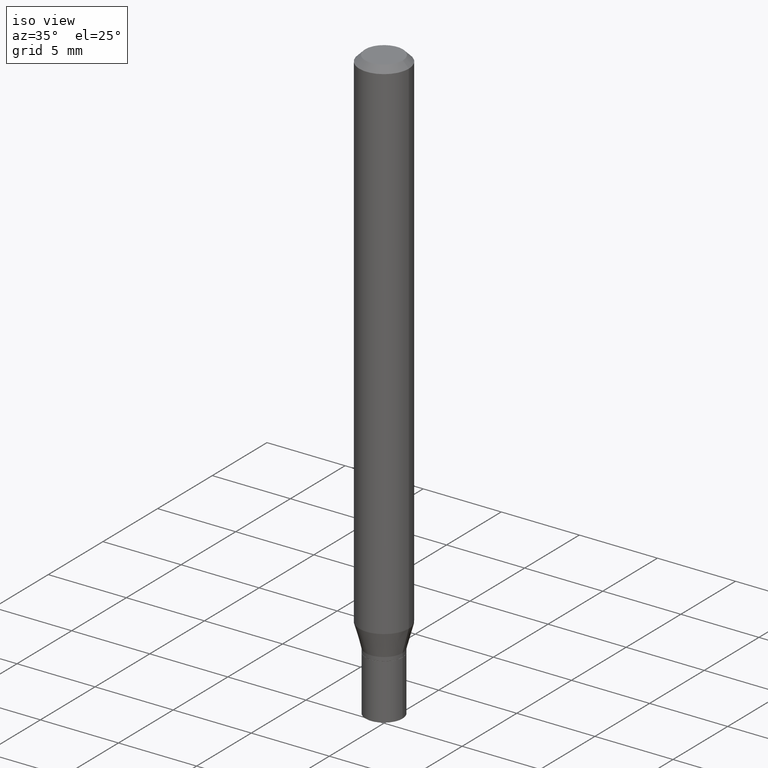
[diagram: clean part render]
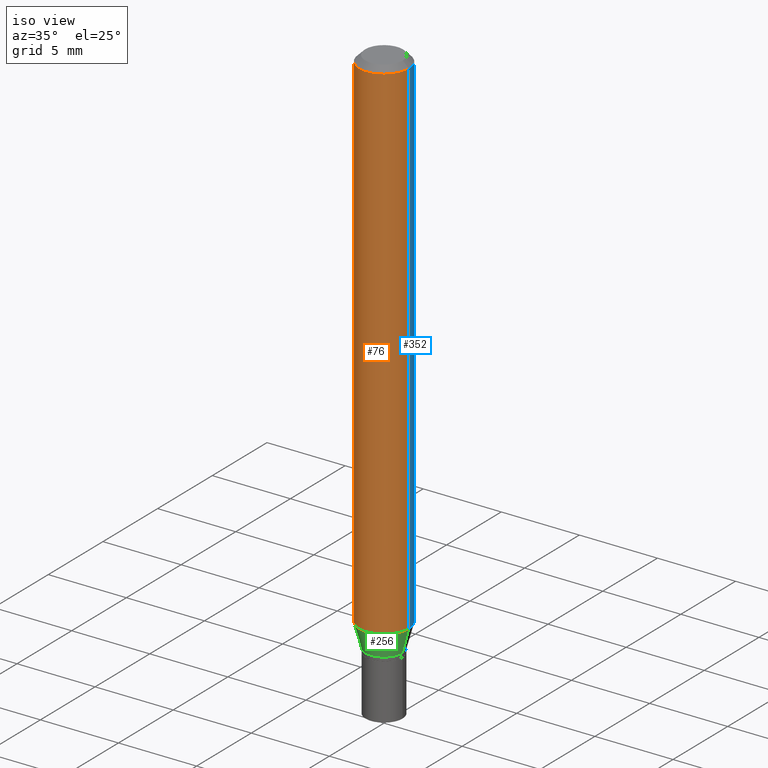
[diagram: same view with three faces highlighted in distinct colors, each labeled with its STEP entity id]
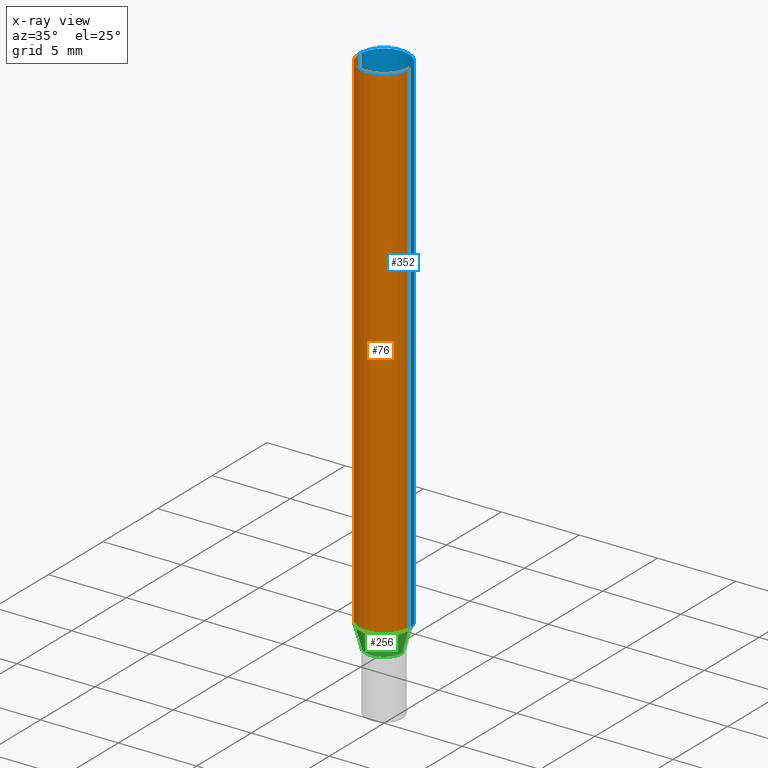
[diagram: x-ray of the same camera — body ghosted, the three highlighted faces saturated]
A machine part, iso view with three faces highlighted in distinct colors.
The next image is the same camera in x-ray (body ghosted, the three faces saturated) — at least one of them is partly hidden behind the body in this view.
Their STEP definitions:

[orange] entity #76 — the highlighted cylindrical surface (edge-blend (fillet) strip) has radius 1.5875 mm, axis along (-0, 0, 1).
#12 = ORIENTED_EDGE ( 'NONE', *, *, #98, .F. ) ;
#26 = CARTESIAN_POINT ( 'NONE',  ( -0.06250000000000000000, -1.835476588243164778E-15, -0.01499999999999999944 ) ) ;
#39 = VERTEX_POINT ( 'NONE', #288 ) ;
#44 = AXIS2_PLACEMENT_3D ( 'NONE', #113, #184, #398 ) ;
#45 = ORIENTED_EDGE ( 'NONE', *, *, #447, .T. ) ;
#48 = CIRCLE ( 'NONE', #44, 0.06250000000000000000 ) ;
#59 = DIRECTION ( 'NONE',  ( 1.000000000000000000, -6.982962677686266711E-15, 4.876176775795935793E-29 ) ) ;
#62 = CARTESIAN_POINT ( 'NONE',  ( 3.156579801424902846E-29, -4.506759376103808104E-15, -1.290787187078897835 ) ) ;
#67 = ORIENTED_EDGE ( 'NONE', *, *, #333, .F. ) ;
#76 = ADVANCED_FACE ( 'NONE', ( #77 ), #276, .T. ) ;
#77 = FACE_OUTER_BOUND ( 'NONE', #252, .T. ) ;
#96 = DIRECTION ( 'NONE',  ( 1.000000000000000000, -6.982962677686262766E-15, 0.000000000000000000 ) ) ;
#98 = EDGE_CURVE ( 'NONE', #403, #429, #426, .T. ) ;
#113 = CARTESIAN_POINT ( 'NONE',  ( 3.668203209277705088E-31, -5.237222008264718399E-17, -0.01499999999999999944 ) ) ;
#121 = EDGE_CURVE ( 'NONE', #403, #39, #424, .T. ) ;
#156 = LINE ( 'NONE', #315, #417 ) ;
#184 = DIRECTION ( 'NONE',  ( -2.445468806185136597E-29, 3.491481338843145583E-15, 1.000000000000000000 ) ) ;
#187 = CARTESIAN_POINT ( 'NONE',  ( -0.06250000000000000000, 4.440892098500626162E-16, -3.074334431409316114E-30 ) ) ;
#198 = CARTESIAN_POINT ( 'NONE',  ( -0.06250000000000000000, -4.062670166253745488E-15, -1.290787187078897835 ) ) ;
#202 = DIRECTION ( 'NONE',  ( -2.445468806185136597E-29, 3.491481338843145583E-15, 1.000000000000000000 ) ) ;
#222 = VECTOR ( 'NONE', #394, 39.37007874015748143 ) ;
#237 = CARTESIAN_POINT ( 'NONE',  ( 0.000000000000000000, 0.000000000000000000, 0.000000000000000000 ) ) ;
#252 = EDGE_LOOP ( 'NONE', ( #12, #373, #45, #67 ) ) ;
#276 = CYLINDRICAL_SURFACE ( 'NONE', #303, 0.06250000000000000000 ) ;
#288 = CARTESIAN_POINT ( 'NONE',  ( 0.06250000000000000000, -4.943194543459198984E-15, -1.290787187078897835 ) ) ;
#303 = AXIS2_PLACEMENT_3D ( 'NONE', #237, #348, #59 ) ;
#315 = CARTESIAN_POINT ( 'NONE',  ( 0.06250000000000000000, -4.364351673553916694E-16, 3.047610484872459871E-30 ) ) ;
#327 = VERTEX_POINT ( 'NONE', #448 ) ;
#333 = EDGE_CURVE ( 'NONE', #429, #327, #48, .T. ) ;
#348 = DIRECTION ( 'NONE',  ( -2.445468806185136597E-29, 3.491481338843145583E-15, 1.000000000000000000 ) ) ;
#373 = ORIENTED_EDGE ( 'NONE', *, *, #121, .T. ) ;
#394 = DIRECTION ( 'NONE',  ( -2.445468806185136877E-29, 3.491481338843145188E-15, 1.000000000000000000 ) ) ;
#398 = DIRECTION ( 'NONE',  ( 1.000000000000000000, -6.982962677686266711E-15, 0.000000000000000000 ) ) ;
#403 = VERTEX_POINT ( 'NONE', #198 ) ;
#417 = VECTOR ( 'NONE', #459, 39.37007874015748143 ) ;
#424 = CIRCLE ( 'NONE', #462, 0.06250000000000000000 ) ;
#426 = LINE ( 'NONE', #187, #222 ) ;
#429 = VERTEX_POINT ( 'NONE', #26 ) ;
#447 = EDGE_CURVE ( 'NONE', #39, #327, #156, .T. ) ;
#448 = CARTESIAN_POINT ( 'NONE',  ( 0.06250000000000000000, -4.888073874380388472E-16, -0.01499999999999999944 ) ) ;
#459 = DIRECTION ( 'NONE',  ( -2.445468806185136877E-29, 3.491481338843145188E-15, 1.000000000000000000 ) ) ;
#462 = AXIS2_PLACEMENT_3D ( 'NONE', #62, #202, #96 ) ;

[blue] entity #352 — the highlighted cylindrical surface (edge-blend (fillet) strip) has radius 1.5875 mm, axis along (-0, 0, 1).
#5 = CIRCLE ( 'NONE', #218, 0.06250000000000000000 ) ;
#21 = AXIS2_PLACEMENT_3D ( 'NONE', #390, #30, #160 ) ;
#26 = CARTESIAN_POINT ( 'NONE',  ( -0.06250000000000000000, -1.835476588243164778E-15, -0.01499999999999999944 ) ) ;
#30 = DIRECTION ( 'NONE',  ( -2.445468806185136597E-29, 3.491481338843145583E-15, 1.000000000000000000 ) ) ;
#35 = CYLINDRICAL_SURFACE ( 'NONE', #101, 0.06250000000000000000 ) ;
#39 = VERTEX_POINT ( 'NONE', #288 ) ;
#87 = ORIENTED_EDGE ( 'NONE', *, *, #447, .F. ) ;
#95 = DIRECTION ( 'NONE',  ( 1.000000000000000000, -6.982962677686262766E-15, 0.000000000000000000 ) ) ;
#98 = EDGE_CURVE ( 'NONE', #403, #429, #426, .T. ) ;
#101 = AXIS2_PLACEMENT_3D ( 'NONE', #328, #134, #330 ) ;
#134 = DIRECTION ( 'NONE',  ( -2.445468806185136597E-29, 3.491481338843145583E-15, 1.000000000000000000 ) ) ;
#138 = EDGE_CURVE ( 'NONE', #327, #429, #319, .T. ) ;
#156 = LINE ( 'NONE', #315, #417 ) ;
#160 = DIRECTION ( 'NONE',  ( 1.000000000000000000, -6.982962677686266711E-15, 0.000000000000000000 ) ) ;
#187 = CARTESIAN_POINT ( 'NONE',  ( -0.06250000000000000000, 4.440892098500626162E-16, -3.074334431409316114E-30 ) ) ;
#198 = CARTESIAN_POINT ( 'NONE',  ( -0.06250000000000000000, -4.062670166253745488E-15, -1.290787187078897835 ) ) ;
#206 = ORIENTED_EDGE ( 'NONE', *, *, #262, .T. ) ;
#218 = AXIS2_PLACEMENT_3D ( 'NONE', #316, #418, #95 ) ;
#222 = VECTOR ( 'NONE', #394, 39.37007874015748143 ) ;
#262 = EDGE_CURVE ( 'NONE', #39, #403, #5, .T. ) ;
#288 = CARTESIAN_POINT ( 'NONE',  ( 0.06250000000000000000, -4.943194543459198984E-15, -1.290787187078897835 ) ) ;
#304 = ORIENTED_EDGE ( 'NONE', *, *, #98, .T. ) ;
#315 = CARTESIAN_POINT ( 'NONE',  ( 0.06250000000000000000, -4.364351673553916694E-16, 3.047610484872459871E-30 ) ) ;
#316 = CARTESIAN_POINT ( 'NONE',  ( 3.156579801424902846E-29, -4.506759376103808104E-15, -1.290787187078897835 ) ) ;
#319 = CIRCLE ( 'NONE', #21, 0.06250000000000000000 ) ;
#327 = VERTEX_POINT ( 'NONE', #448 ) ;
#328 = CARTESIAN_POINT ( 'NONE',  ( 0.000000000000000000, 0.000000000000000000, 0.000000000000000000 ) ) ;
#330 = DIRECTION ( 'NONE',  ( 1.000000000000000000, -6.982962677686266711E-15, 4.876176775795935793E-29 ) ) ;
#352 = ADVANCED_FACE ( 'NONE', ( #362 ), #35, .T. ) ;
#362 = FACE_OUTER_BOUND ( 'NONE', #421, .T. ) ;
#386 = ORIENTED_EDGE ( 'NONE', *, *, #138, .F. ) ;
#390 = CARTESIAN_POINT ( 'NONE',  ( 3.668203209277705088E-31, -5.237222008264718399E-17, -0.01499999999999999944 ) ) ;
#394 = DIRECTION ( 'NONE',  ( -2.445468806185136877E-29, 3.491481338843145188E-15, 1.000000000000000000 ) ) ;
#403 = VERTEX_POINT ( 'NONE', #198 ) ;
#417 = VECTOR ( 'NONE', #459, 39.37007874015748143 ) ;
#418 = DIRECTION ( 'NONE',  ( -2.445468806185136597E-29, 3.491481338843145583E-15, 1.000000000000000000 ) ) ;
#421 = EDGE_LOOP ( 'NONE', ( #206, #304, #386, #87 ) ) ;
#426 = LINE ( 'NONE', #187, #222 ) ;
#429 = VERTEX_POINT ( 'NONE', #26 ) ;
#447 = EDGE_CURVE ( 'NONE', #39, #327, #156, .T. ) ;
#448 = CARTESIAN_POINT ( 'NONE',  ( 0.06250000000000000000, -4.888073874380388472E-16, -0.01499999999999999944 ) ) ;
#459 = DIRECTION ( 'NONE',  ( -2.445468806185136877E-29, 3.491481338843145188E-15, 1.000000000000000000 ) ) ;

[green] entity #256 — the highlighted conical surface has half-angle 15 deg.
#19 = LINE ( 'NONE', #323, #158 ) ;
#29 = LINE ( 'NONE', #157, #286 ) ;
#39 = VERTEX_POINT ( 'NONE', #288 ) ;
#62 = CARTESIAN_POINT ( 'NONE',  ( 3.156579801424902846E-29, -4.506759376103808104E-15, -1.290787187078897835 ) ) ;
#91 = DIRECTION ( 'NONE',  ( 0.2588190451025213501, 1.565188264969621968E-15, 0.9659258262890682012 ) ) ;
#96 = DIRECTION ( 'NONE',  ( 1.000000000000000000, -6.982962677686262766E-15, 0.000000000000000000 ) ) ;
#100 = DIRECTION ( 'NONE',  ( -2.445468806185136597E-29, 3.491481338843145583E-15, 1.000000000000000000 ) ) ;
#116 = DIRECTION ( 'NONE',  ( 1.000000000000000000, -6.982962677686269866E-15, 0.000000000000000000 ) ) ;
#121 = EDGE_CURVE ( 'NONE', #403, #39, #424, .T. ) ;
#128 = VERTEX_POINT ( 'NONE', #356 ) ;
#129 = ORIENTED_EDGE ( 'NONE', *, *, #166, .T. ) ;
#140 = ORIENTED_EDGE ( 'NONE', *, *, #228, .T. ) ;
#151 = DIRECTION ( 'NONE',  ( -2.445468806185136597E-29, 3.491481338843145583E-15, 1.000000000000000000 ) ) ;
#157 = CARTESIAN_POINT ( 'NONE',  ( -0.04649999999999993722, -4.384843175979221614E-15, -1.350500000000000034 ) ) ;
#158 = VECTOR ( 'NONE', #91, 39.37007874015747433 ) ;
#166 = EDGE_CURVE ( 'NONE', #128, #39, #19, .T. ) ;
#175 = CIRCLE ( 'NONE', #275, 0.04649999999999993722 ) ;
#182 = CONICAL_SURFACE ( 'NONE', #223, 0.04649999999999993722, 0.2617993877991500740 ) ;
#186 = DIRECTION ( 'NONE',  ( -0.2588190451025213501, 5.211531920934551042E-15, 0.9659258262890682012 ) ) ;
#198 = CARTESIAN_POINT ( 'NONE',  ( -0.06250000000000000000, -4.062670166253745488E-15, -1.290787187078897835 ) ) ;
#202 = DIRECTION ( 'NONE',  ( -2.445468806185136597E-29, 3.491481338843145583E-15, 1.000000000000000000 ) ) ;
#210 = DIRECTION ( 'NONE',  ( 1.000000000000000000, -6.982962677686269866E-15, 0.000000000000000000 ) ) ;
#223 = AXIS2_PLACEMENT_3D ( 'NONE', #413, #151, #116 ) ;
#227 = VERTEX_POINT ( 'NONE', #331 ) ;
#228 = EDGE_CURVE ( 'NONE', #227, #128, #175, .T. ) ;
#230 = ORIENTED_EDGE ( 'NONE', *, *, #121, .F. ) ;
#246 = CARTESIAN_POINT ( 'NONE',  ( 3.302605622753026759E-29, -4.715245548107668099E-15, -1.350500000000000034 ) ) ;
#256 = ADVANCED_FACE ( 'NONE', ( #385 ), #182, .T. ) ;
#274 = ORIENTED_EDGE ( 'NONE', *, *, #325, .F. ) ;
#275 = AXIS2_PLACEMENT_3D ( 'NONE', #246, #100, #210 ) ;
#286 = VECTOR ( 'NONE', #186, 39.37007874015747433 ) ;
#288 = CARTESIAN_POINT ( 'NONE',  ( 0.06250000000000000000, -4.943194543459198984E-15, -1.290787187078897835 ) ) ;
#323 = CARTESIAN_POINT ( 'NONE',  ( 0.04649999999999993722, -5.039953312620078807E-15, -1.350500000000000034 ) ) ;
#325 = EDGE_CURVE ( 'NONE', #227, #403, #29, .T. ) ;
#331 = CARTESIAN_POINT ( 'NONE',  ( -0.04649999999999993722, -4.223756671116483156E-15, -1.350500000000000034 ) ) ;
#356 = CARTESIAN_POINT ( 'NONE',  ( 0.04649999999999993722, -5.039953312620078807E-15, -1.350500000000000034 ) ) ;
#385 = FACE_OUTER_BOUND ( 'NONE', #401, .T. ) ;
#401 = EDGE_LOOP ( 'NONE', ( #274, #140, #129, #230 ) ) ;
#403 = VERTEX_POINT ( 'NONE', #198 ) ;
#413 = CARTESIAN_POINT ( 'NONE',  ( 3.302605622753026759E-29, -4.715245548107668099E-15, -1.350500000000000034 ) ) ;
#424 = CIRCLE ( 'NONE', #462, 0.06250000000000000000 ) ;
#462 = AXIS2_PLACEMENT_3D ( 'NONE', #62, #202, #96 ) ;